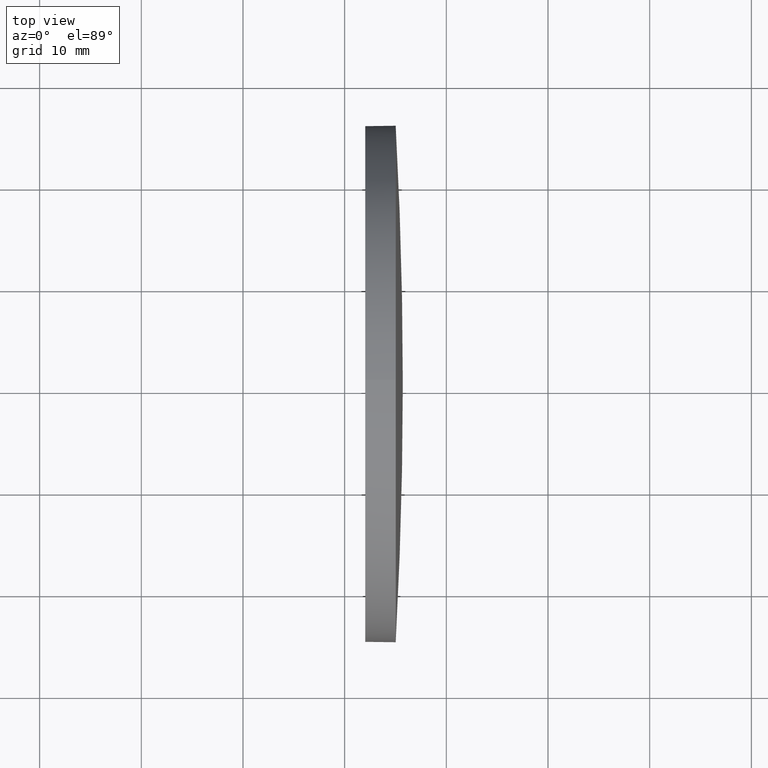
[diagram: clean part render]
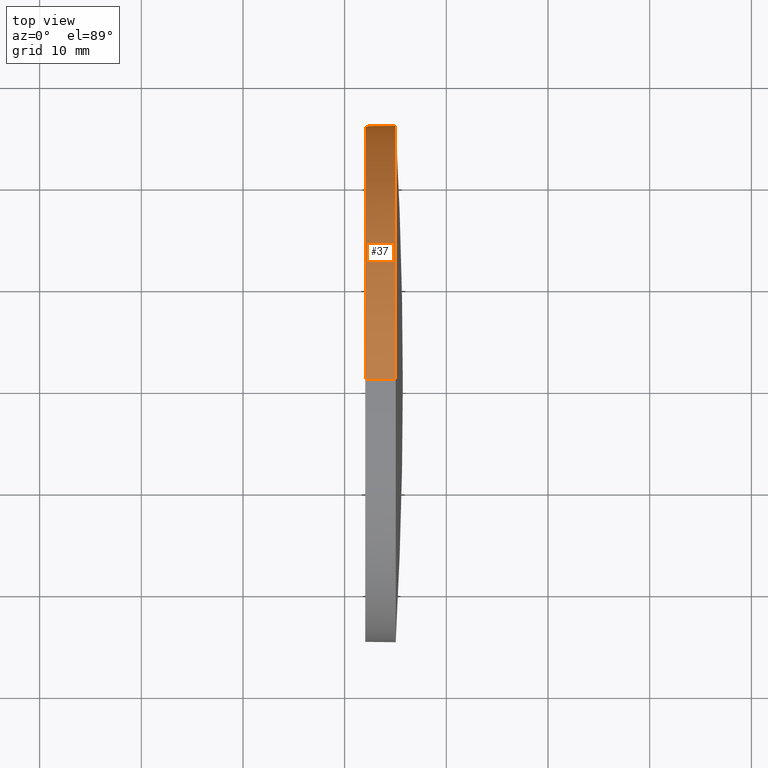
[diagram: same view with one face highlighted and labeled with its STEP entity id]
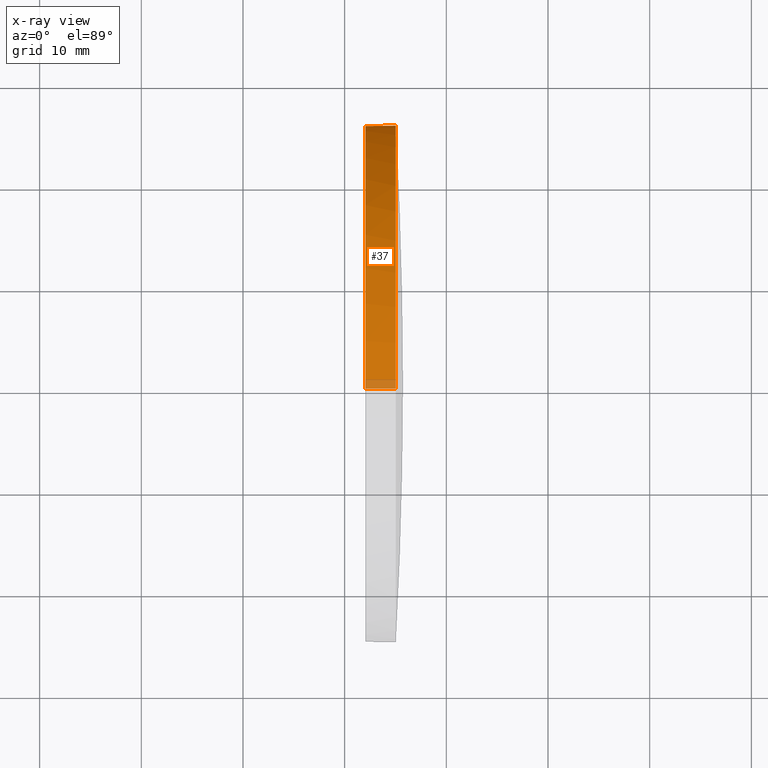
[diagram: x-ray of the same camera — body ghosted, the highlighted face saturated]
A machine part, top view. The second image highlights one B-rep face of the part: STEP entity #37.
The next image is the same camera in x-ray: the body ghosted, the highlighted face saturated — about 3% of this face is hidden behind the body in this view.
In plain terms, the highlighted cylindrical surface (partial cylindrical patch) has radius 25.4 mm, axis along (-1, -0, -0).
Its self-contained STEP definition (entity closure, byte-faithful):
#7 = CARTESIAN_POINT ( 'NONE',  ( 235.0208200792423800, 130.4671098528243900, -25.40000000000000600 ) ) ;
#10 = VECTOR ( 'NONE', #94, 1000.000000000000000 ) ;
#13 = CIRCLE ( 'NONE', #90, 25.40000000000000600 ) ;
#16 = CARTESIAN_POINT ( 'NONE',  ( 235.0208200792423800, 130.4671098528243900, 0.0000000000000000000 ) ) ;
#18 = VERTEX_POINT ( 'NONE', #149 ) ;
#32 = CARTESIAN_POINT ( 'NONE',  ( 235.0208200792423800, 130.4671098528243900, 0.0000000000000000000 ) ) ;
#36 = LINE ( 'NONE', #93, #39 ) ;
#37 = ADVANCED_FACE ( 'NONE', ( #72 ), #117, .T. ) ;
#39 = VECTOR ( 'NONE', #126, 1000.000000000000000 ) ;
#43 = DIRECTION ( 'NONE',  ( 0.0000000000000000000, 0.0000000000000000000, 1.000000000000000000 ) ) ;
#45 = LINE ( 'NONE', #165, #10 ) ;
#47 = EDGE_LOOP ( 'NONE', ( #55, #113, #116, #88, #107 ) ) ;
#48 = DIRECTION ( 'NONE',  ( -1.000000000000000000, -0.0000000000000000000, -0.0000000000000000000 ) ) ;
#53 = EDGE_CURVE ( 'NONE', #82, #183, #123, .T. ) ;
#55 = ORIENTED_EDGE ( 'NONE', *, *, #53, .T. ) ;
#67 = CARTESIAN_POINT ( 'NONE',  ( 220.3307464569769000, 130.4671098528243900, 0.0000000000000000000 ) ) ;
#72 = FACE_OUTER_BOUND ( 'NONE', #47, .T. ) ;
#82 = VERTEX_POINT ( 'NONE', #153 ) ;
#83 = AXIS2_PLACEMENT_3D ( 'NONE', #67, #174, #89 ) ;
#85 = VERTEX_POINT ( 'NONE', #124 ) ;
#86 = CARTESIAN_POINT ( 'NONE',  ( 232.0208200792423800, 130.4671098528243900, -25.40000000000000600 ) ) ;
#87 = EDGE_CURVE ( 'NONE', #18, #91, #13, .T. ) ;
#88 = ORIENTED_EDGE ( 'NONE', *, *, #100, .F. ) ;
#89 = DIRECTION ( 'NONE',  ( 0.0000000000000000000, 0.0000000000000000000, 1.000000000000000000 ) ) ;
#90 = AXIS2_PLACEMENT_3D ( 'NONE', #169, #48, #154 ) ;
#91 = VERTEX_POINT ( 'NONE', #86 ) ;
#93 = CARTESIAN_POINT ( 'NONE',  ( 220.3307464569769000, 130.4671098528243900, 25.40000000000000600 ) ) ;
#94 = DIRECTION ( 'NONE',  ( -1.000000000000000000, -0.0000000000000000000, -0.0000000000000000000 ) ) ;
#95 = AXIS2_PLACEMENT_3D ( 'NONE', #32, #125, #111 ) ;
#97 = AXIS2_PLACEMENT_3D ( 'NONE', #16, #137, #43 ) ;
#100 = EDGE_CURVE ( 'NONE', #85, #18, #36, .T. ) ;
#107 = ORIENTED_EDGE ( 'NONE', *, *, #112, .T. ) ;
#111 = DIRECTION ( 'NONE',  ( 0.0000000000000000000, 0.0000000000000000000, 1.000000000000000000 ) ) ;
#112 = EDGE_CURVE ( 'NONE', #85, #82, #134, .T. ) ;
#113 = ORIENTED_EDGE ( 'NONE', *, *, #120, .T. ) ;
#116 = ORIENTED_EDGE ( 'NONE', *, *, #87, .F. ) ;
#117 = CYLINDRICAL_SURFACE ( 'NONE', #83, 25.40000000000000600 ) ;
#120 = EDGE_CURVE ( 'NONE', #183, #91, #45, .T. ) ;
#123 = CIRCLE ( 'NONE', #97, 25.40000000000000600 ) ;
#124 = CARTESIAN_POINT ( 'NONE',  ( 235.0208200792423800, 130.4671098528243900, 25.40000000000000600 ) ) ;
#125 = DIRECTION ( 'NONE',  ( -1.000000000000000000, -0.0000000000000000000, -0.0000000000000000000 ) ) ;
#126 = DIRECTION ( 'NONE',  ( -1.000000000000000000, -0.0000000000000000000, -0.0000000000000000000 ) ) ;
#134 = CIRCLE ( 'NONE', #95, 25.40000000000000600 ) ;
#137 = DIRECTION ( 'NONE',  ( -1.000000000000000000, -0.0000000000000000000, -0.0000000000000000000 ) ) ;
#149 = CARTESIAN_POINT ( 'NONE',  ( 232.0208200792423800, 130.4671098528243900, 25.40000000000000600 ) ) ;
#153 = CARTESIAN_POINT ( 'NONE',  ( 235.0208200792423800, 155.8671098528241700, 0.0000000000000000000 ) ) ;
#154 = DIRECTION ( 'NONE',  ( 0.0000000000000000000, 0.0000000000000000000, 1.000000000000000000 ) ) ;
#165 = CARTESIAN_POINT ( 'NONE',  ( 220.3307464569769000, 130.4671098528243900, -25.40000000000000600 ) ) ;
#169 = CARTESIAN_POINT ( 'NONE',  ( 232.0208200792423800, 130.4671098528243900, 0.0000000000000000000 ) ) ;
#174 = DIRECTION ( 'NONE',  ( -1.000000000000000000, -0.0000000000000000000, -0.0000000000000000000 ) ) ;
#183 = VERTEX_POINT ( 'NONE', #7 ) ;